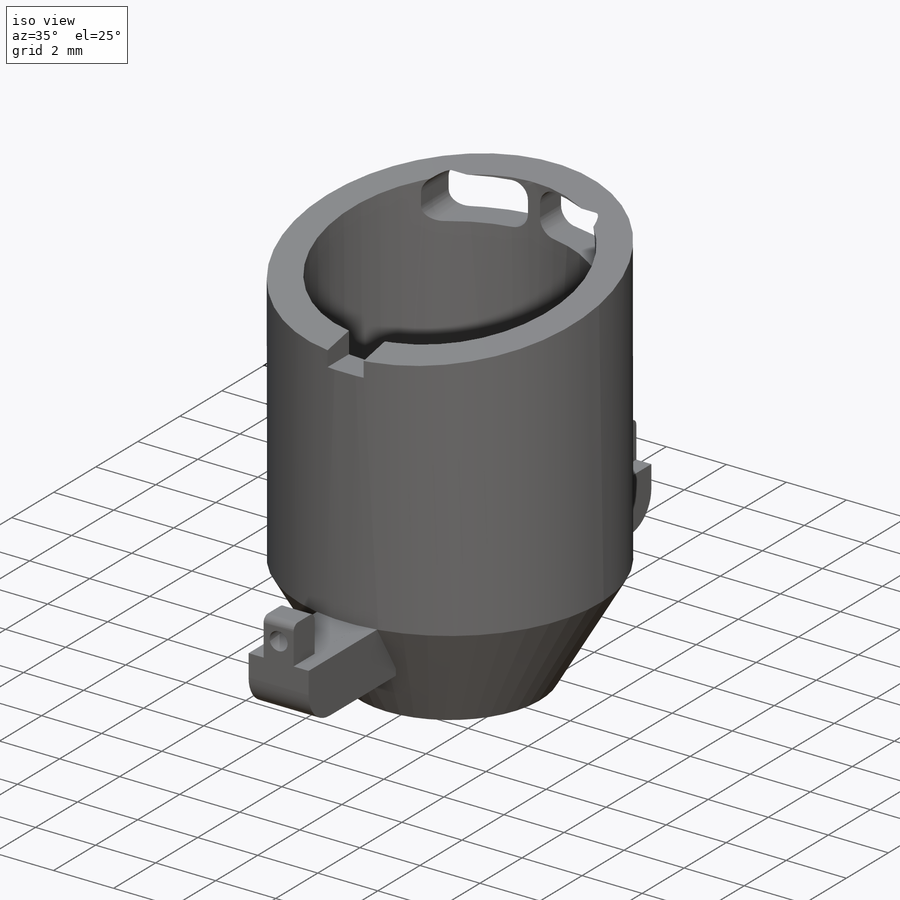
[diagram: iso view]
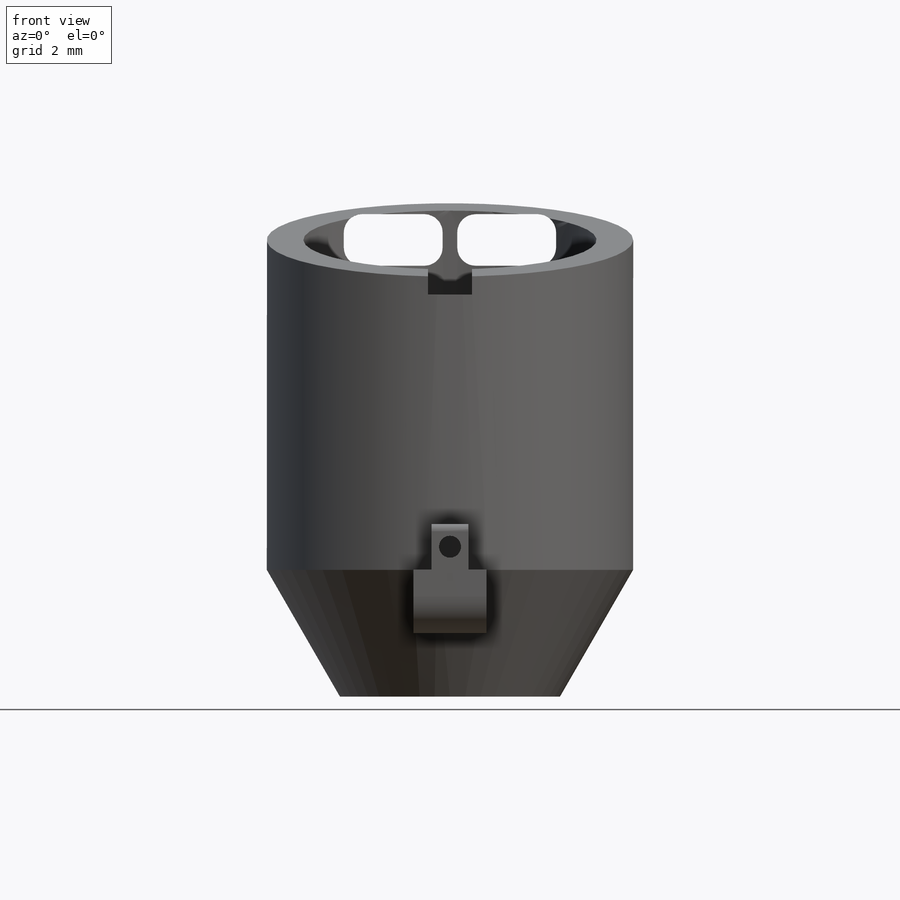
[diagram: front view]
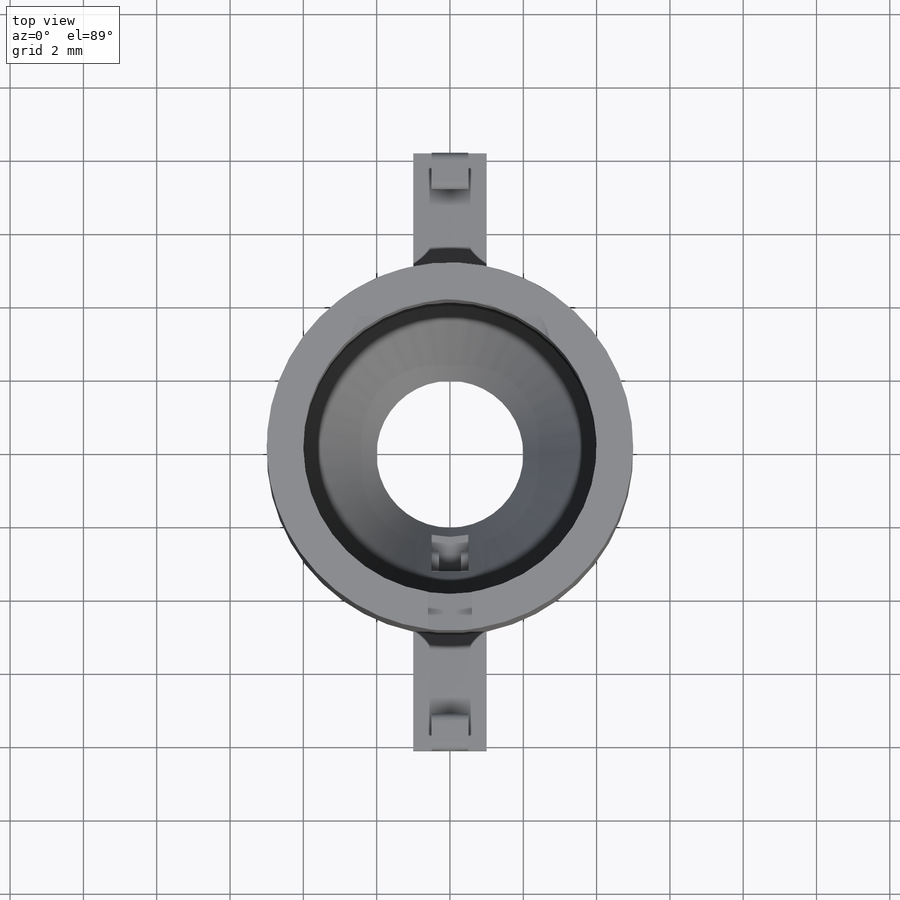
[diagram: top view]
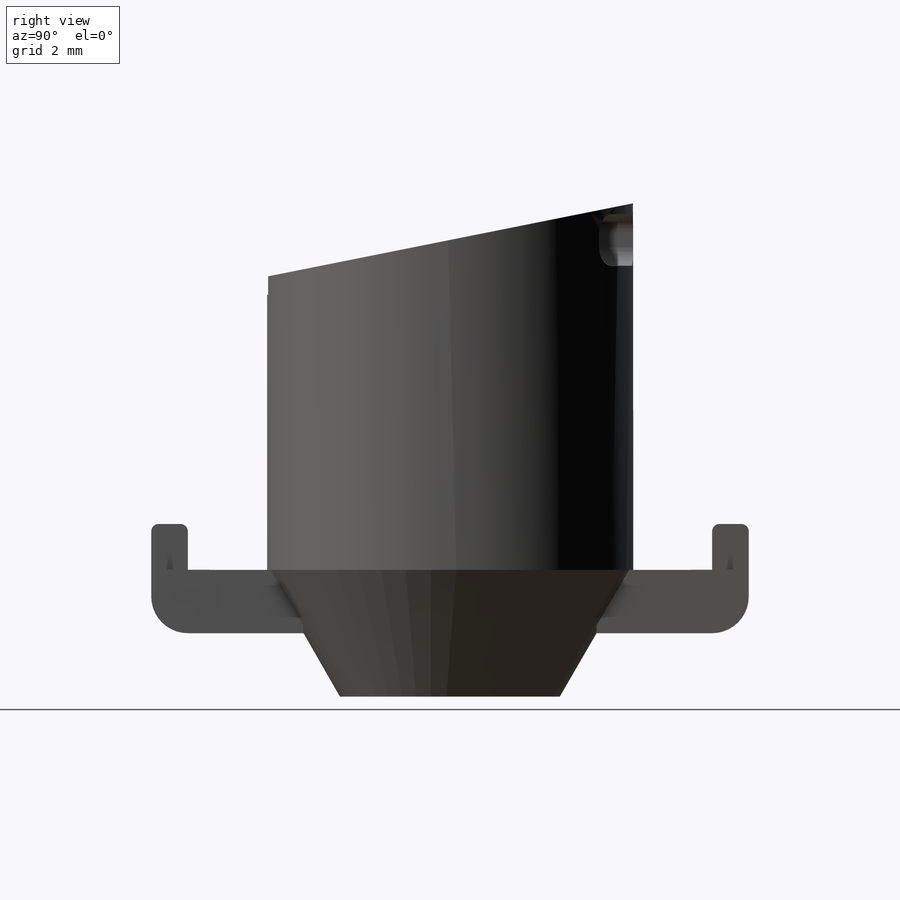
[diagram: right view]
SOLIDWORKS PART (.sldprt)
format: sldprt  version: not decoded by parser v0  size: 429,056 bytes
history: native  units: mm
features: sketch x16, cut_extrude x12, extrude x3, material x1 (+11 scaffold rows collapsed)
feature tree (43):
  scaffold x11  (default folders/planes/origin — collapsed)
  material  "Material <not specified>"
  sketch  "Sketch1"  dims[OuterDiameter=9.999mm WallThickness=0.999mm]
  extrude  "Boss-Extrude1"  Depth=10mm
  sketch  "Sketch2"
  extrude  "Boss-Extrude2"  Depth=5mm
  sketch  "Sketch3"
  cut_extrude  "Cut-Extrude1"  Depth=5mm
  sketch  "Sketch9"  dims[D1=0.601mm D2=0.55mm D3=0.55mm]
  cut_extrude  "Cut-Extrude6"  Depth=0.301mm
  sketch  "Sketch10"  dims[D1=0.401mm]
  cut_extrude  "Cut-Extrude9"  Depth=0.5mm
  sketch  "Sketch11"  dims[D1=2.0mm]
  cut_extrude  "Cut-Extrude10"  [1 undecoded]
  sketch  "Sketch12"  dims[D3=0.5mm D1=0.2mm D2=0.2mm]
  cut_extrude  "Cut-Extrude13"  [1 undecoded]
  sketch  "Sketch14"
  cut_extrude  "Cut-Extrude14"  [1 undecoded]
  sketch  "Sketch15"  dims[c1.D2=1.0mm c1.D3=0.6mm c1.D4=0.2mm c1.D1=4.15mm c2.D2=1.25mm c2.D5=0.999mm c2.D3=1.0mm]
  extrude  "Boss-Extrude3"  Depth=1mm
  sketch  "Sketch18"  dims[D1=0.5mm D2=1.2mm D3=0.6mm]
  cut_extrude  "Cut-Extrude15"  [1 undecoded]
  sketch  "Sketch19"  dims[D1=0.5mm]
  cut_extrude  "Cut-Extrude16"  [1 undecoded]
  sketch  "Sketch20"
  cut_extrude  "Cut-Extrude17"  [1 undecoded]
  sketch  "Sketch22"  dims[D1=0.601mm]
  cut_extrude  "Cut-Extrude19"  [1 undecoded]
  sketch  "Sketch24"  dims[D1=0.6mm]
  cut_extrude  "Cut-Extrude20"  [1 undecoded]
  sketch  "Sketch25"  dims[c1.D2=0.4mm c1.D1=0.6mm c2.D2=~0.929401mm]
  sketch  "Sketch26"  dims[D1=0.6mm]
  cut_extrude  "Cut-Extrude21"  Depth=0.501mm
decode coverage: 19 of 31 modeling features carry decoded parameters
note: ~ marks probable driven/reference dimensions
note: 8 parameter values undecoded
summary: no parameter record found for 8 features
note: suppression state not decoded; provenance and decode notes live in map.json
